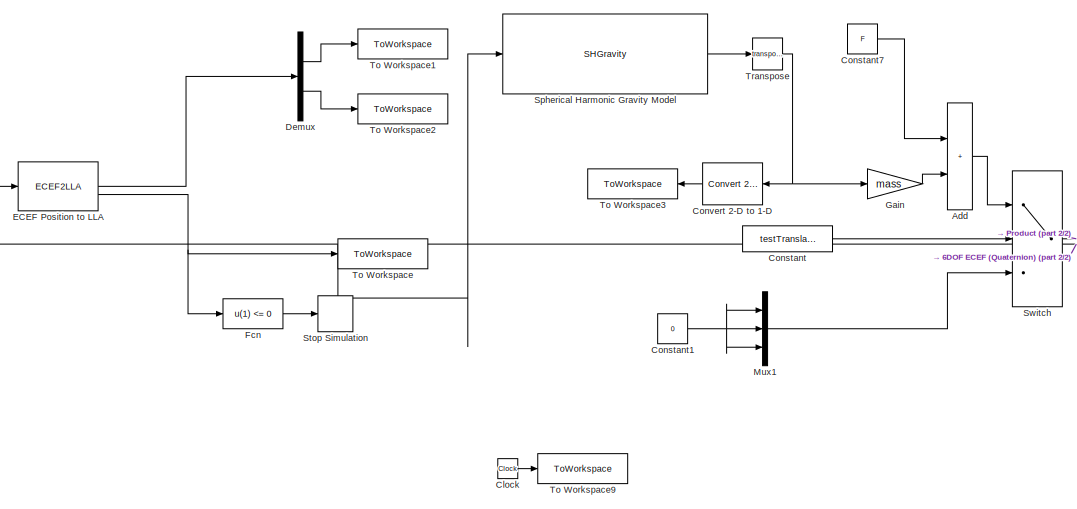
[diagram: root canvas - part 1/2, top left region]
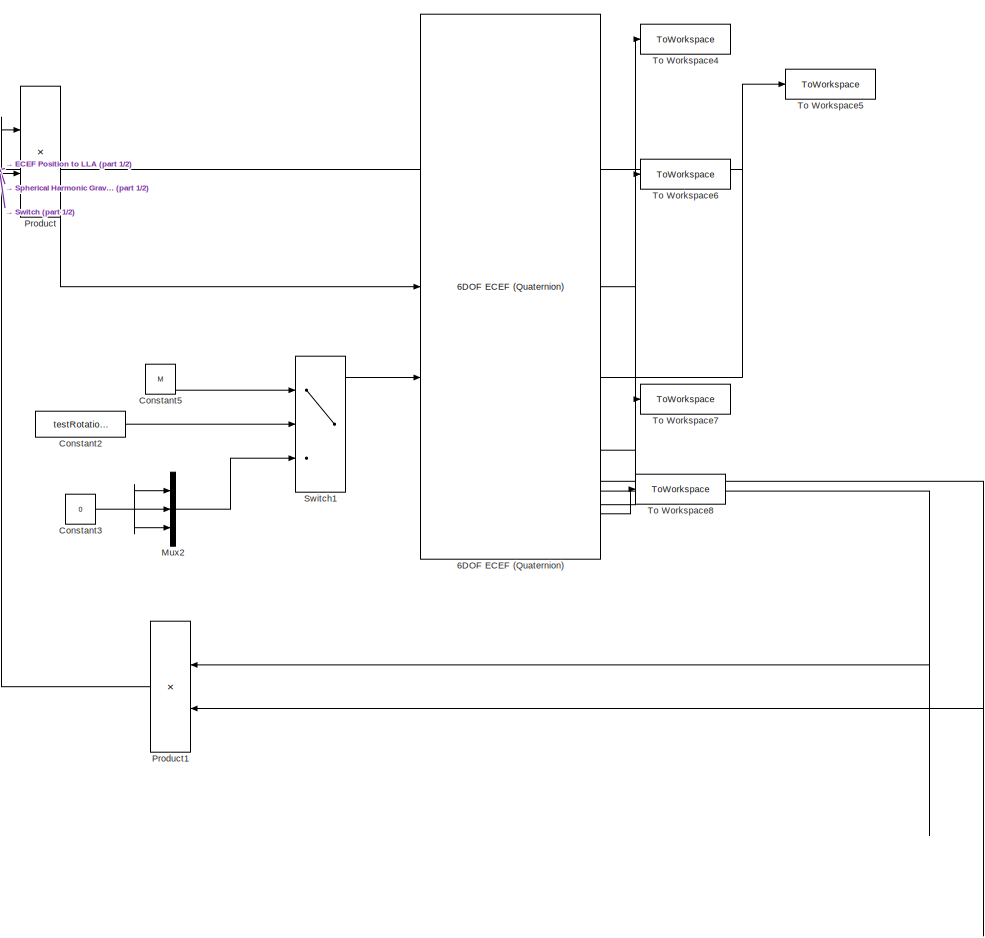
[diagram: root canvas - part 2/2, right side, full height]
MODEL slx_b65255ccb451
KIND model
CONFIG AbsTol = auto
CONFIG EnableMultiTasking = off
CONFIG FixedStep = dt
CONFIG MaxStep = auto
CONFIG MinStep = auto
CONFIG RelTol = 1e-3
CONFIG SampleTimeConstraint = Unconstrained
CONFIG SolverName = ode4
CONFIG StartTime = 0.0
CONFIG StopTime = tf
BLOCK [Reference] 6DOF ECEF (Quaternion)  REF=aerolib6dof2/6DOF ECEF (Quaternion)
  SourceBlock = aerolib6dof2/6DOF ECEF (Quaternion)
  SourceType = 6DOF EoM (ECEF)
BLOCK [Sum] Add
  IconShape = rectangular
BLOCK [Clock] Clock
BLOCK [Constant] Constant
  Value = testTranslational
BLOCK [Constant] Constant1
  Value = 0
BLOCK [Constant] Constant2
  Value = testRotational
BLOCK [Constant] Constant3
  Value = 0
BLOCK [Constant] Constant5
  Value = M
BLOCK [Constant] Constant7
  Value = F
BLOCK [Reference] Convert 2-D to 1-D  REF=dspsigattribs/Convert 2-D to 1-D
  NameLocation = top
  SourceBlock = dspsigattribs/Convert 2-D to 1-D
  SourceType = Convert 2-D to 1-D
BLOCK [Demux] Demux
  Outputs = 2
BLOCK [ECEF2LLA] ECEF Position to LLA
BLOCK [Fcn] Fcn
  Expr = u(1) <= 0
BLOCK [Gain] Gain
  Gain = mass
BLOCK [Mux] Mux1
  DisplayOption = bar
  Inputs = 3
BLOCK [Mux] Mux2
  DisplayOption = bar
  Inputs = 3
BLOCK [Product] Product
  Multiplication = Matrix(*)
BLOCK [Product] Product1
  Multiplication = Matrix(*)
  NameLocation = top
BLOCK [SHGravity] Spherical Harmonic Gravity Model
BLOCK [Stop] Stop Simulation
BLOCK [Switch] Switch
  Criteria = u2 > Threshold
  InputSameDT = off
  SaturateOnIntegerOverflow = off
BLOCK [Switch] Switch1
  Criteria = u2 > Threshold
  InputSameDT = off
  SaturateOnIntegerOverflow = off
BLOCK [ToWorkspace] To Workspace
  FixptAsFi = on
  MaxDataPoints = inf
  SampleTime = -1
  VariableName = alt
BLOCK [ToWorkspace] To Workspace1
  FixptAsFi = on
  MaxDataPoints = inf
  SampleTime = -1
  VariableName = lat
BLOCK [ToWorkspace] To Workspace2
  FixptAsFi = on
  MaxDataPoints = inf
  SampleTime = -1
  VariableName = lon
BLOCK [ToWorkspace] To Workspace3
  FixptAsFi = on
  MaxDataPoints = inf
  NameLocation = top
  SampleTime = -1
  VariableName = gravity
BLOCK [ToWorkspace] To Workspace4
  FixptAsFi = on
  MaxDataPoints = inf
  SampleTime = -1
  VariableName = velEcef
BLOCK [ToWorkspace] To Workspace5
  FixptAsFi = on
  MaxDataPoints = inf
  SampleTime = -1
  VariableName = posEcef
BLOCK [ToWorkspace] To Workspace6
  FixptAsFi = on
  MaxDataPoints = inf
  SampleTime = -1
  VariableName = eulerAngs
BLOCK [ToWorkspace] To Workspace7
  FixptAsFi = on
  MaxDataPoints = inf
  SampleTime = -1
  VariableName = bodyRates
BLOCK [ToWorkspace] To Workspace8
  FixptAsFi = on
  MaxDataPoints = inf
  SampleTime = -1
  VariableName = bodyAccel
BLOCK [ToWorkspace] To Workspace9
  FixptAsFi = on
  MaxDataPoints = inf
  SampleTime = -1
  VariableName = time
BLOCK [Math] Transpose
  Operator = transpose
LINE 6DOF ECEF (Quaternion):1 -> To Workspace4:1
LINE 6DOF ECEF (Quaternion):11 -> To Workspace8:1
NET 6DOF ECEF (Quaternion):2 -> ECEF Position to LLA:1, Spherical Harmonic Gravity Model:1, To Workspace5:1
LINE 6DOF ECEF (Quaternion):4 -> To Workspace6:1
LINE 6DOF ECEF (Quaternion):6 -> Product1:2
LINE 6DOF ECEF (Quaternion):7 -> Product1:1
LINE 6DOF ECEF (Quaternion):9 -> To Workspace7:1
LINE Add:1 -> Switch:1
LINE Clock:1 -> To Workspace9:1
NET Constant1:1 -> Mux1:1, Mux1:2, Mux1:3
LINE Constant2:1 -> Switch1:2
NET Constant3:1 -> Mux2:1, Mux2:2, Mux2:3
LINE Constant5:1 -> Switch1:1
LINE Constant7:1 -> Add:1
LINE Constant:1 -> Switch:2
LINE Convert 2-D to 1-D:1 -> To Workspace3:1
LINE Demux:1 -> To Workspace1:1
LINE Demux:2 -> To Workspace2:1
LINE ECEF Position to LLA:1 -> Demux:1
NET ECEF Position to LLA:2 -> Fcn:1, To Workspace:1
LINE Fcn:1 -> Stop Simulation:1
LINE Gain:1 -> Add:2
LINE Mux1:1 -> Switch:3
LINE Mux2:1 -> Switch1:3
LINE Product1:1 -> Product:1
LINE Product:1 -> 6DOF ECEF (Quaternion):1
LINE Spherical Harmonic Gravity Model:1 -> Transpose:1
LINE Switch1:1 -> 6DOF ECEF (Quaternion):2
LINE Switch:1 -> Product:2
NET Transpose:1 -> Convert 2-D to 1-D:1, Gain:1
note: NET lines group one-source signal fan-out (src -> all destinations, sorted); 1:1 wires keep LINE
